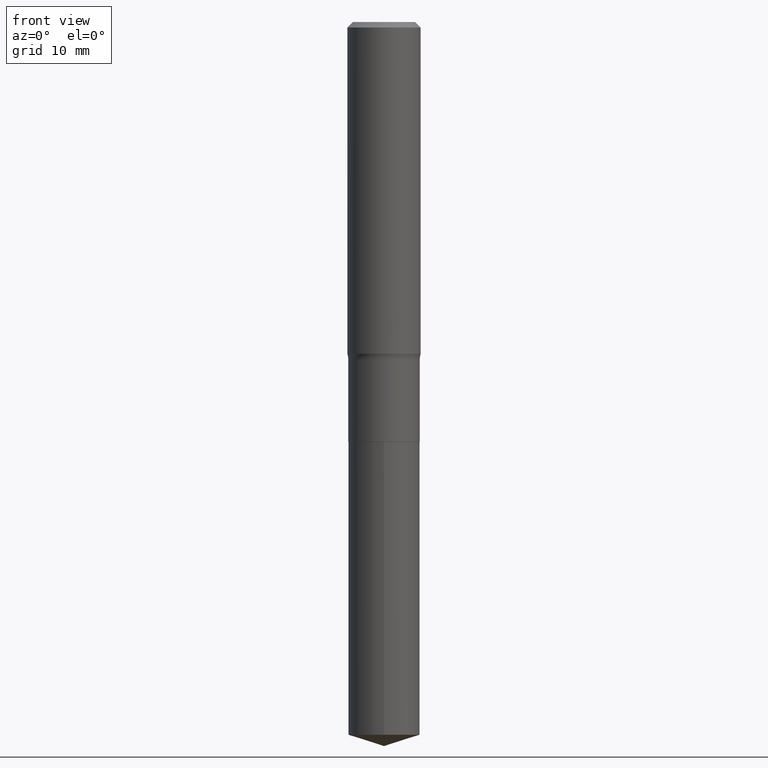
[diagram: clean part render]
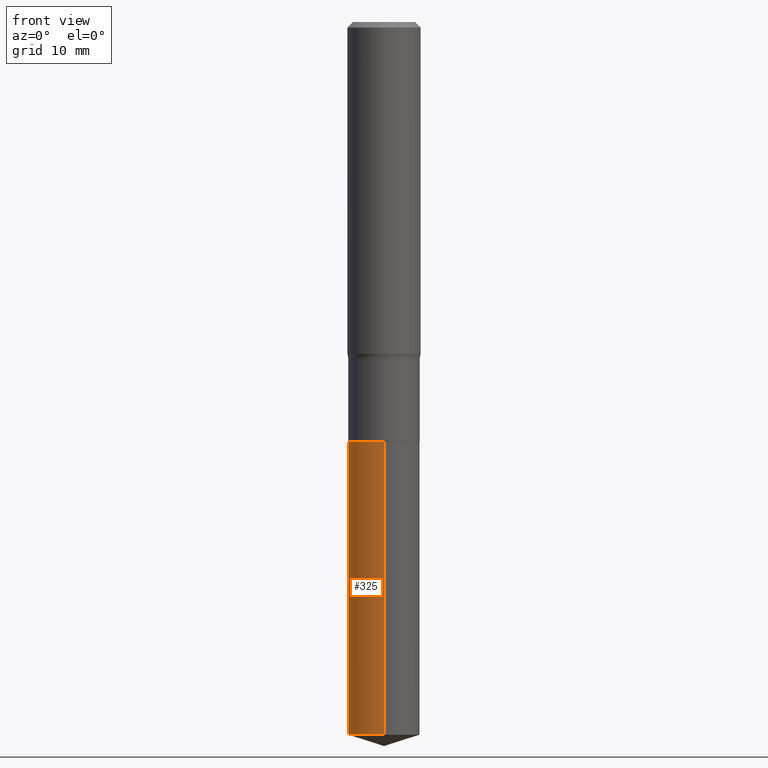
[diagram: same view with one face highlighted and labeled with its STEP entity id]
A machine part, front view. The second image highlights one B-rep face of the part: STEP entity #325.
In plain terms, the highlighted cylindrical surface (edge-blend (fillet) strip) has radius 3.9002 mm, axis along (-0, 0, 1).
Its self-contained STEP definition (entity closure, byte-faithful):
#1 = CIRCLE ( 'NONE', #385, 0.1535499999999999921 ) ;
#26 = VERTEX_POINT ( 'NONE', #98 ) ;
#29 = VERTEX_POINT ( 'NONE', #194 ) ;
#30 = VECTOR ( 'NONE', #295, 39.37007874015748143 ) ;
#32 = DIRECTION ( 'NONE',  ( -6.982962677686266711E-15, -1.000000000000000000, 3.558252026915354491E-15 ) ) ;
#36 = DIRECTION ( 'NONE',  ( -2.445714465445102928E-29, 3.491129540800817350E-15, 1.000000000000000000 ) ) ;
#56 = CARTESIAN_POINT ( 'NONE',  ( 7.487811046509325449E-29, -1.068972542879178408E-14, -3.061785870967632217 ) ) ;
#98 = CARTESIAN_POINT ( 'NONE',  ( -1.072233919158650810E-15, -0.1535500000000106224, -3.061785870967631773 ) ) ;
#100 = DIRECTION ( 'NONE',  ( -6.982962677686266711E-15, -1.000000000000000000, 3.558252026915354491E-15 ) ) ;
#130 = CARTESIAN_POINT ( 'NONE',  ( -1.072233919158681970E-15, -0.1535500000000062926, -1.803099999999999481 ) ) ;
#147 = EDGE_CURVE ( 'NONE', #327, #189, #443, .T. ) ;
#148 = CARTESIAN_POINT ( 'NONE',  ( 4.409424804432419562E-29, -6.295490002068075450E-15, -1.803099999999999925 ) ) ;
#172 = CARTESIAN_POINT ( 'NONE',  ( 1.091038370759677758E-15, 0.1535499999999936915, -1.803100000000000591 ) ) ;
#181 = CIRCLE ( 'NONE', #462, 0.1535499999999999921 ) ;
#186 = ORIENTED_EDGE ( 'NONE', *, *, #191, .T. ) ;
#189 = VERTEX_POINT ( 'NONE', #407 ) ;
#191 = EDGE_CURVE ( 'NONE', #26, #29, #245, .T. ) ;
#194 = CARTESIAN_POINT ( 'NONE',  ( -1.072233919158681970E-15, -0.1535500000000062926, -1.803099999999999481 ) ) ;
#208 = VECTOR ( 'NONE', #478, 39.37007874015748143 ) ;
#224 = EDGE_CURVE ( 'NONE', #327, #26, #1, .T. ) ;
#245 = LINE ( 'NONE', #130, #208 ) ;
#250 = DIRECTION ( 'NONE',  ( -2.445714465445102928E-29, 3.491129540800817350E-15, 1.000000000000000000 ) ) ;
#265 = ORIENTED_EDGE ( 'NONE', *, *, #147, .F. ) ;
#269 = DIRECTION ( 'NONE',  ( -2.445714465445102928E-29, 3.491129540800817350E-15, 1.000000000000000000 ) ) ;
#295 = DIRECTION ( 'NONE',  ( -2.445714465445102928E-29, 3.491129540800817745E-15, 1.000000000000000000 ) ) ;
#310 = EDGE_CURVE ( 'NONE', #189, #29, #181, .T. ) ;
#325 = ADVANCED_FACE ( 'NONE', ( #434 ), #438, .T. ) ;
#327 = VERTEX_POINT ( 'NONE', #458 ) ;
#345 = AXIS2_PLACEMENT_3D ( 'NONE', #435, #269, #430 ) ;
#366 = EDGE_LOOP ( 'NONE', ( #265, #476, #186, #375 ) ) ;
#375 = ORIENTED_EDGE ( 'NONE', *, *, #310, .F. ) ;
#385 = AXIS2_PLACEMENT_3D ( 'NONE', #56, #36, #100 ) ;
#407 = CARTESIAN_POINT ( 'NONE',  ( 1.091038370759708918E-15, 0.1535499999999937193, -1.803100000000000591 ) ) ;
#430 = DIRECTION ( 'NONE',  ( -6.982962677686266711E-15, -1.000000000000000000, 3.558252026915354491E-15 ) ) ;
#434 = FACE_OUTER_BOUND ( 'NONE', #366, .T. ) ;
#435 = CARTESIAN_POINT ( 'NONE',  ( 4.409424804432419562E-29, -6.295490002068075450E-15, -1.803099999999999925 ) ) ;
#438 = CYLINDRICAL_SURFACE ( 'NONE', #345, 0.1535499999999999921 ) ;
#443 = LINE ( 'NONE', #172, #30 ) ;
#458 = CARTESIAN_POINT ( 'NONE',  ( 1.091038370759708129E-15, 0.1535499999999892229, -3.061785870967633105 ) ) ;
#462 = AXIS2_PLACEMENT_3D ( 'NONE', #148, #250, #32 ) ;
#476 = ORIENTED_EDGE ( 'NONE', *, *, #224, .T. ) ;
#478 = DIRECTION ( 'NONE',  ( -2.445714465445102928E-29, 3.491129540800817745E-15, 1.000000000000000000 ) ) ;